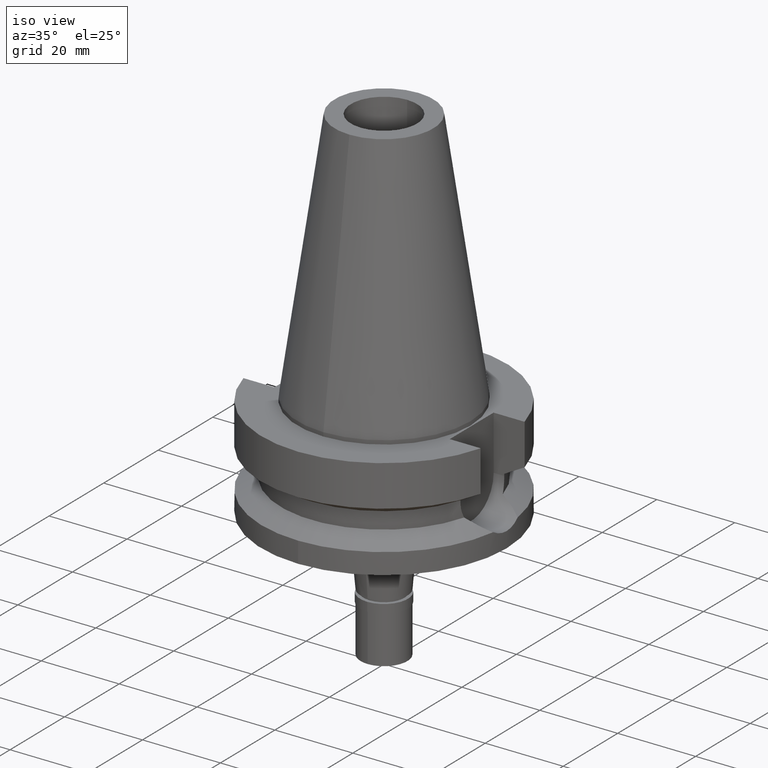
[diagram: clean part render]
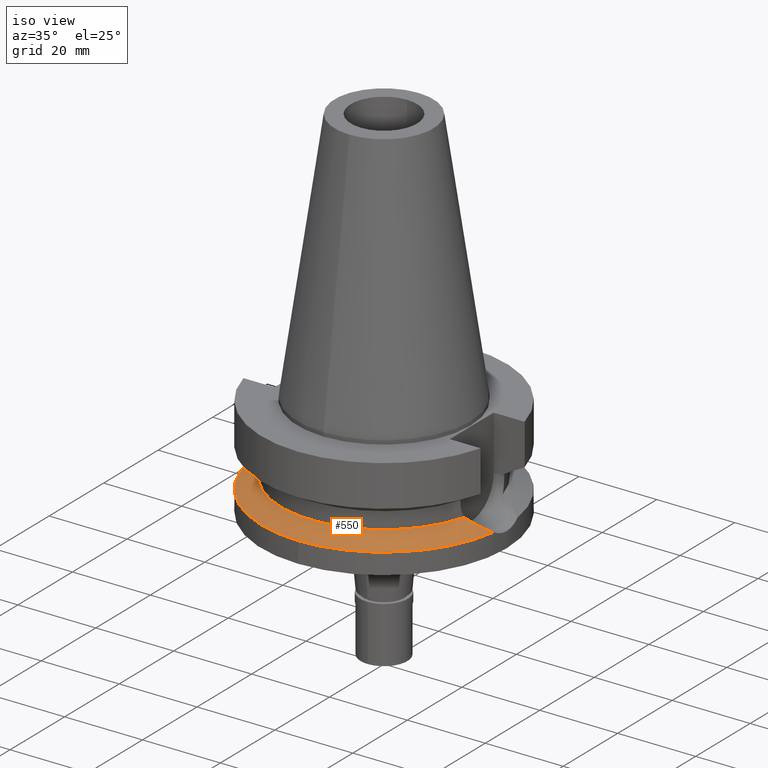
[diagram: same view with one face highlighted and labeled with its STEP entity id]
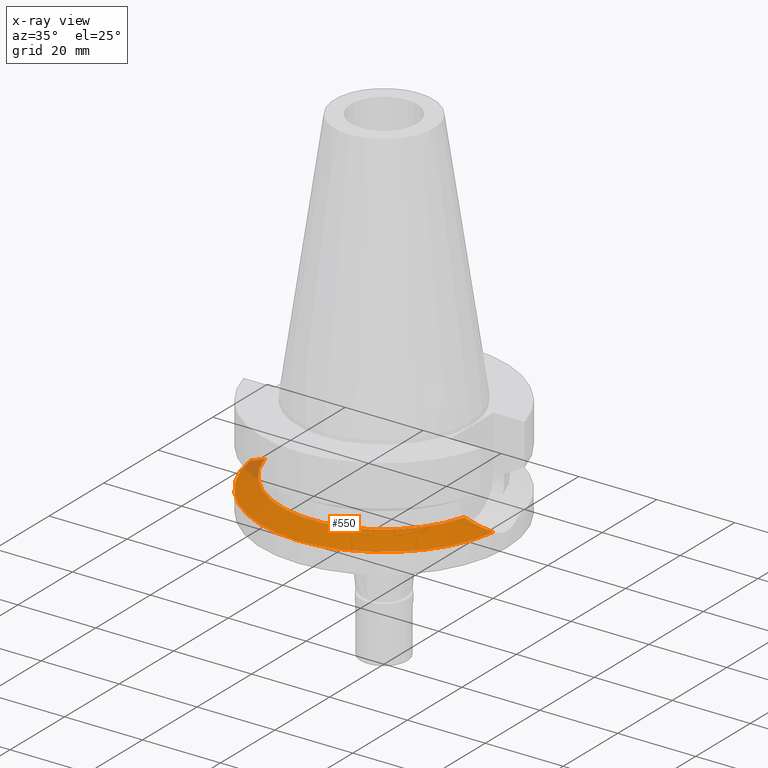
[diagram: x-ray of the same camera — body ghosted, the highlighted face saturated]
A machine part, iso view. The second image highlights one B-rep face of the part: STEP entity #550.
The next image is the same camera in x-ray: the body ghosted, the highlighted face saturated — about 3% of this face is hidden behind the body in this view.
In plain terms, the highlighted conical surface has half-angle 60 deg.
Its self-contained STEP definition (entity closure, byte-faithful):
#7 = ORIENTED_EDGE ( 'NONE', *, *, #1357, .F. ) ;
#120 = DIRECTION ( 'NONE',  ( 0.0000000000000000000, 0.0000000000000000000, -1.000000000000000000 ) ) ;
#132 = CARTESIAN_POINT ( 'NONE',  ( 28.79780624769639275, -5.905725240472603055, -20.42040484226827601 ) ) ;
#155 = CARTESIAN_POINT ( 'NONE',  ( -28.91255547263854453, -5.850898878483555166, -20.47900266839992511 ) ) ;
#189 = ORIENTED_EDGE ( 'NONE', *, *, #1658, .F. ) ;
#236 = VERTEX_POINT ( 'NONE', #483 ) ;
#314 = ORIENTED_EDGE ( 'NONE', *, *, #1168, .F. ) ;
#317 = CARTESIAN_POINT ( 'NONE',  ( -31.17899877608999759, -4.485536235554000051, -21.63449434733000132 ) ) ;
#375 = CARTESIAN_POINT ( 'NONE',  ( 27.60232427652873355, -6.420077171407465144, -19.80960365155801739 ) ) ;
#397 = CARTESIAN_POINT ( 'NONE',  ( -30.50158731723766792, -4.970376236364428379, -21.28964294904320198 ) ) ;
#406 = CARTESIAN_POINT ( 'NONE',  ( 0.0000000000000000000, -31.50000000000000000, -21.63449434733000132 ) ) ;
#410 = EDGE_CURVE ( 'NONE', #236, #1953, #1258, .T. ) ;
#429 = CIRCLE ( 'NONE', #1207, 31.50000000000000000 ) ;
#438 = CARTESIAN_POINT ( 'NONE',  ( -29.71925692403215891, -5.434491807582396028, -20.89078427456762554 ) ) ;
#483 = CARTESIAN_POINT ( 'NONE',  ( 25.53175183775000079, -7.097862220092999941, -18.74774300138999905 ) ) ;
#550 = ADVANCED_FACE ( 'NONE', ( #1059 ), #2836, .T. ) ;
#576 = CARTESIAN_POINT ( 'NONE',  ( 28.43846411957202847, -6.071503304972373449, -20.23690760931678767 ) ) ;
#599 = CARTESIAN_POINT ( 'NONE',  ( -29.40469747252801724, -5.603311965755318091, -20.73026165197828163 ) ) ;
#707 = ORIENTED_EDGE ( 'NONE', *, *, #410, .F. ) ;
#736 = CARTESIAN_POINT ( 'NONE',  ( -25.53175183775000079, -7.097862220092999941, -18.74774300138999905 ) ) ;
#860 = CARTESIAN_POINT ( 'NONE',  ( -27.92308442269840185, -6.323820716592017277, -19.97371305638980488 ) ) ;
#866 = EDGE_CURVE ( 'NONE', #1401, #236, #1246, .T. ) ;
#880 = VERTEX_POINT ( 'NONE', #406 ) ;
#890 = EDGE_LOOP ( 'NONE', ( #314, #7, #707, #997, #189 ) ) ;
#938 = DIRECTION ( 'NONE',  ( 0.9898094849552905306, -0.1423979757318985240, 0.0000000000000000000 ) ) ;
#997 = ORIENTED_EDGE ( 'NONE', *, *, #866, .F. ) ;
#1039 = DIRECTION ( 'NONE',  ( 0.0000000000000000000, 0.0000000000000000000, -1.000000000000000000 ) ) ;
#1048 = CARTESIAN_POINT ( 'NONE',  ( 28.82807152884985413, -5.891369283798700174, -20.43585980003928881 ) ) ;
#1059 = FACE_OUTER_BOUND ( 'NONE', #890, .T. ) ;
#1063 = CARTESIAN_POINT ( 'NONE',  ( 31.17899877608999759, -4.485536235554000051, -21.63449434733000132 ) ) ;
#1079 = CARTESIAN_POINT ( 'NONE',  ( 28.25118795062484267, -6.153093694603758657, -20.14125097342454396 ) ) ;
#1101 = B_SPLINE_CURVE_WITH_KNOTS ( 'NONE', 3,
 ( #2906, #1298, #397, #2474, #438, #599, #2004, #2051, #1325, #155, #2227, #860, #1757, #2963 ),
 .UNSPECIFIED., .F., .F.,
 ( 4, 2, 2, 1, 1, 2, 2, 4 ),
 ( 0.0000000000000000000, 0.2499999999999975575, 0.3749999999999966693, 0.4374999999999969469, 0.4687499999999977240, 0.4843749999999982792, 0.4999999999999987788, 1.000000000000000000 ),
 .UNSPECIFIED. ) ;
#1168 = EDGE_CURVE ( 'NONE', #880, #2362, #429, .T. ) ;
#1207 = AXIS2_PLACEMENT_3D ( 'NONE', #1931, #1039, #1434 ) ;
#1246 = CIRCLE ( 'NONE', #2594, 26.49999999999998224 ) ;
#1258 = B_SPLINE_CURVE_WITH_KNOTS ( 'NONE', 3,
 ( #1265, #1967, #2887, #375, #2190, #1079, #576, #2660, #1995, #132, #1048, #2440, #1289, #1063 ),
 .UNSPECIFIED., .F., .F.,
 ( 4, 2, 2, 1, 1, 2, 2, 4 ),
 ( 0.0000000000000000000, 0.2500000000000081046, 0.3750000000000124345, 0.4375000000000149880, 0.4687500000000162093, 0.4843750000000158207, 0.5000000000000154321, 1.000000000000000000 ),
 .UNSPECIFIED. ) ;
#1265 = CARTESIAN_POINT ( 'NONE',  ( 25.53175183775000079, -7.097862220092999941, -18.74774300138999905 ) ) ;
#1289 = CARTESIAN_POINT ( 'NONE',  ( 30.53387369544702779, -4.974972406881220444, -21.30606506496651420 ) ) ;
#1298 = CARTESIAN_POINT ( 'NONE',  ( -30.85643442117970636, -4.730255697888906319, -21.47027878235396159 ) ) ;
#1325 = CARTESIAN_POINT ( 'NONE',  ( -28.96851297356457877, -5.823764131641412156, -20.50757676801864093 ) ) ;
#1357 = EDGE_CURVE ( 'NONE', #1953, #880, #2639, .T. ) ;
#1401 = VERTEX_POINT ( 'NONE', #736 ) ;
#1434 = DIRECTION ( 'NONE',  ( 0.0000000000000000000, -1.000000000000000000, 0.0000000000000000000 ) ) ;
#1440 = AXIS2_PLACEMENT_3D ( 'NONE', #2052, #2519, #938 ) ;
#1658 = EDGE_CURVE ( 'NONE', #2362, #1401, #1101, .T. ) ;
#1757 = CARTESIAN_POINT ( 'NONE',  ( -26.81492848253265038, -6.745138948562577674, -19.40697170175540975 ) ) ;
#1930 = CARTESIAN_POINT ( 'NONE',  ( 31.17899877608999759, -4.485536235554000051, -21.63449434733000132 ) ) ;
#1931 = CARTESIAN_POINT ( 'NONE',  ( 0.0000000000000000000, 0.0000000000000000000, -21.63449434733000132 ) ) ;
#1941 = CARTESIAN_POINT ( 'NONE',  ( 0.0000000000000000000, 0.0000000000000000000, -18.74774300138999905 ) ) ;
#1953 = VERTEX_POINT ( 'NONE', #1930 ) ;
#1967 = CARTESIAN_POINT ( 'NONE',  ( 26.17334478110739937, -6.921499314100992173, -19.07735972558466386 ) ) ;
#1995 = CARTESIAN_POINT ( 'NONE',  ( 28.73879888271474314, -5.933493804044839948, -20.39027306590660871 ) ) ;
#2004 = CARTESIAN_POINT ( 'NONE',  ( -29.24439123905422022, -5.686920788008928973, -20.64843650275078346 ) ) ;
#2051 = CARTESIAN_POINT ( 'NONE',  ( -29.05207091148841414, -5.782947410871804195, -20.55024346541474145 ) ) ;
#2052 = CARTESIAN_POINT ( 'NONE',  ( 0.0000000000000000000, 0.0000000000000000000, -21.63449434733000132 ) ) ;
#2188 = CARTESIAN_POINT ( 'NONE',  ( 0.0000000000000000000, 0.0000000000000000000, -20.19111867435999841 ) ) ;
#2190 = CARTESIAN_POINT ( 'NONE',  ( 27.86843235352863957, -6.314612098037559740, -19.94567500803776738 ) ) ;
#2227 = CARTESIAN_POINT ( 'NONE',  ( -28.88538013435819352, -5.863983878922168991, -20.46512547336928733 ) ) ;
#2362 = VERTEX_POINT ( 'NONE', #317 ) ;
#2440 = CARTESIAN_POINT ( 'NONE',  ( 29.75964107307634166, -5.446211078147396023, -20.91157894157667485 ) ) ;
#2444 = DIRECTION ( 'NONE',  ( -0.9634623335000935818, -0.2678438573619981722, 0.0000000000000000000 ) ) ;
#2474 = CARTESIAN_POINT ( 'NONE',  ( -29.92089253777698943, -5.319809134264459338, -20.99362754792919716 ) ) ;
#2519 = DIRECTION ( 'NONE',  ( 0.0000000000000000000, 0.0000000000000000000, -1.000000000000000000 ) ) ;
#2594 = AXIS2_PLACEMENT_3D ( 'NONE', #1941, #2862, #2444 ) ;
#2639 = CIRCLE ( 'NONE', #1440, 31.50000000000001421 ) ;
#2660 = CARTESIAN_POINT ( 'NONE',  ( 28.64977513154217093, -5.975068427543440031, -20.34481403352543794 ) ) ;
#2836 = CONICAL_SURFACE ( 'NONE', #2919, 29.00000000000000000, 1.047197551196400456 ) ;
#2862 = DIRECTION ( 'NONE',  ( 0.0000000000000000000, 0.0000000000000000000, 1.000000000000000000 ) ) ;
#2868 = DIRECTION ( 'NONE',  ( 0.0000000000000000000, -1.000000000000000000, 0.0000000000000000000 ) ) ;
#2887 = CARTESIAN_POINT ( 'NONE',  ( 26.77118700872175694, -6.727826166946242026, -19.38411876426497571 ) ) ;
#2906 = CARTESIAN_POINT ( 'NONE',  ( -31.17899877608999759, -4.485536235554000051, -21.63449434733000132 ) ) ;
#2919 = AXIS2_PLACEMENT_3D ( 'NONE', #2188, #120, #2868 ) ;
#2963 = CARTESIAN_POINT ( 'NONE',  ( -25.53175183775000079, -7.097862220092999941, -18.74774300138999905 ) ) ;